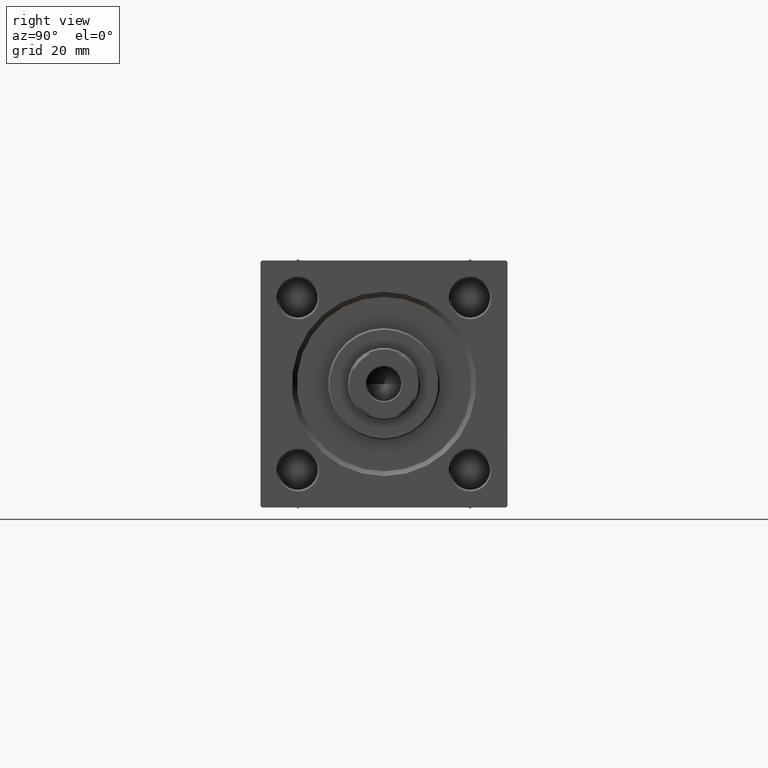
[diagram: clean part render]
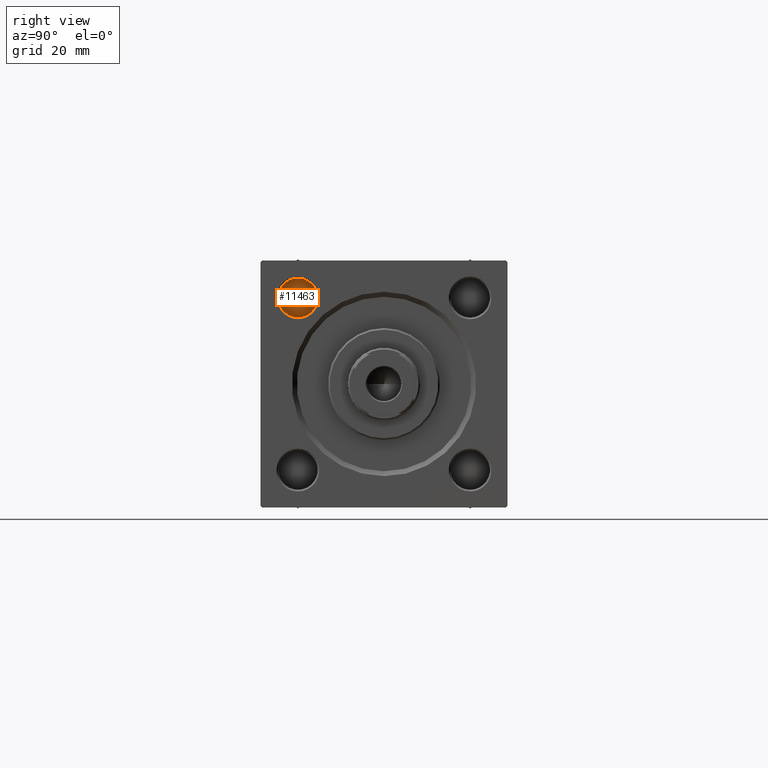
[diagram: same view with one face highlighted and labeled with its STEP entity id]
A machine part, right view. The second image highlights one B-rep face of the part: STEP entity #11463.
In plain terms, the highlighted planar face has unit normal (1, 0, 0).
Its self-contained STEP definition (entity closure, byte-faithful):
#1121 = CIRCLE ( 'NONE', #9187, 5.999999999999998224 ) ;
#2820 = CARTESIAN_POINT ( 'NONE',  ( 129.0000000000000000, -26.14999999999999147, 26.14999999999999503 ) ) ;
#6652 = VERTEX_POINT ( 'NONE', #46139 ) ;
#8510 = VERTEX_POINT ( 'NONE', #45627 ) ;
#8698 = PLANE ( 'NONE',  #35458 ) ;
#9187 = AXIS2_PLACEMENT_3D ( 'NONE', #24389, #32010, #28945 ) ;
#11463 = ADVANCED_FACE ( 'NONE', ( #43477 ), #8698, .T. ) ;
#13864 = EDGE_CURVE ( 'NONE', #8510, #6652, #46759, .T. ) ;
#21356 = DIRECTION ( 'NONE',  ( 1.000000000000000000, 0.000000000000000000, 0.000000000000000000 ) ) ;
#24186 = DIRECTION ( 'NONE',  ( 1.000000000000000000, 0.000000000000000000, 0.000000000000000000 ) ) ;
#24389 = CARTESIAN_POINT ( 'NONE',  ( 129.0000000000000000, -26.14999999999999147, 26.14999999999999503 ) ) ;
#25428 = DIRECTION ( 'NONE',  ( 0.000000000000000000, 0.000000000000000000, -1.000000000000000000 ) ) ;
#27755 = DIRECTION ( 'NONE',  ( 0.000000000000000000, 0.000000000000000000, -1.000000000000000000 ) ) ;
#28945 = DIRECTION ( 'NONE',  ( 0.000000000000000000, 0.000000000000000000, -1.000000000000000000 ) ) ;
#32010 = DIRECTION ( 'NONE',  ( 1.000000000000000000, 0.000000000000000000, 0.000000000000000000 ) ) ;
#35458 = AXIS2_PLACEMENT_3D ( 'NONE', #42984, #24186, #27755 ) ;
#38638 = AXIS2_PLACEMENT_3D ( 'NONE', #2820, #21356, #25428 ) ;
#39459 = EDGE_LOOP ( 'NONE', ( #45127, #42122 ) ) ;
#42122 = ORIENTED_EDGE ( 'NONE', *, *, #49144, .T. ) ;
#42984 = CARTESIAN_POINT ( 'NONE',  ( 129.0000000000000000, -26.14999999999999147, 26.14999999999999503 ) ) ;
#43477 = FACE_OUTER_BOUND ( 'NONE', #39459, .T. ) ;
#45127 = ORIENTED_EDGE ( 'NONE', *, *, #13864, .T. ) ;
#45627 = CARTESIAN_POINT ( 'NONE',  ( 129.0000000000000000, -26.14999999999999147, 20.14999999999999858 ) ) ;
#46139 = CARTESIAN_POINT ( 'NONE',  ( 129.0000000000000000, -26.14999999999999147, 32.14999999999999858 ) ) ;
#46759 = CIRCLE ( 'NONE', #38638, 5.999999999999998224 ) ;
#49144 = EDGE_CURVE ( 'NONE', #6652, #8510, #1121, .T. ) ;